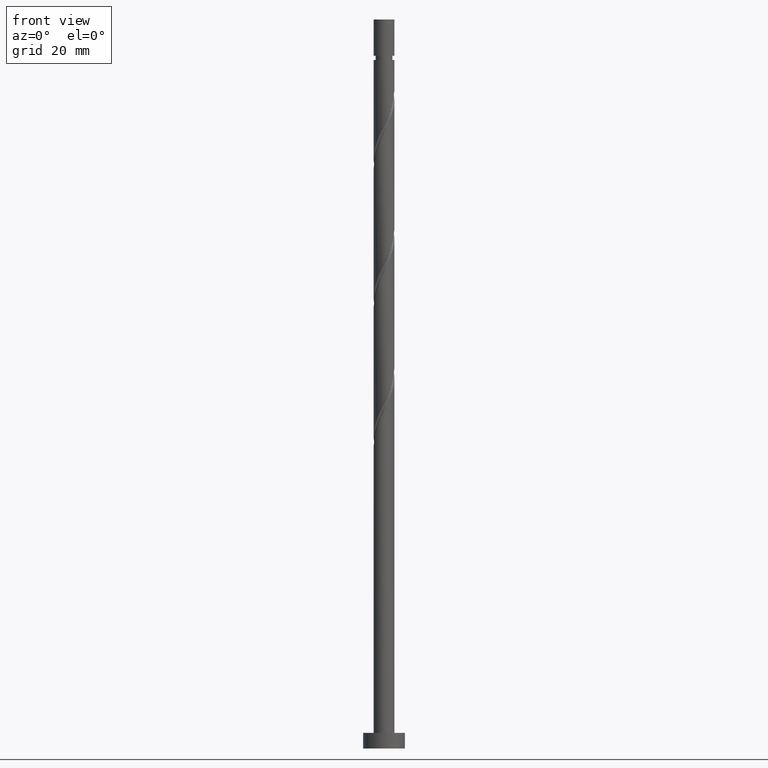
[diagram: clean part render]
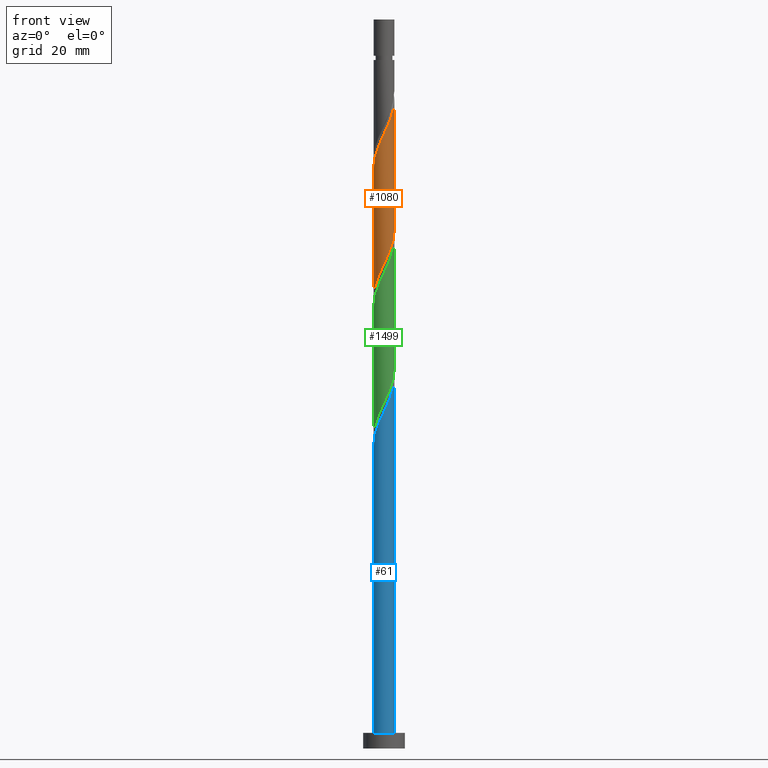
[diagram: same view with three faces highlighted in distinct colors, each labeled with its STEP entity id]
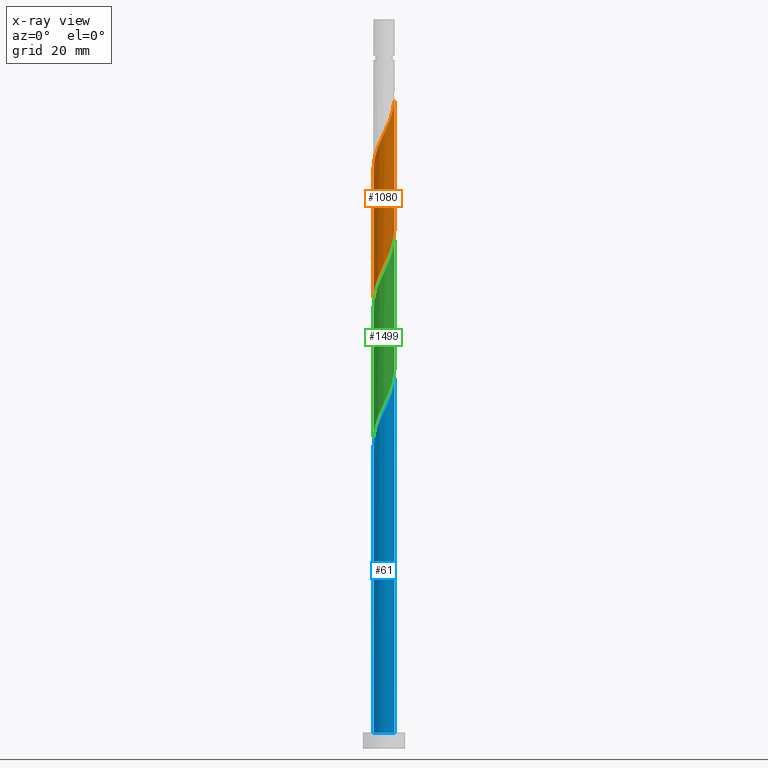
[diagram: x-ray of the same camera — body ghosted, the three highlighted faces saturated]
A machine part, front view with three faces highlighted in distinct colors.
The next image is the same camera in x-ray (body ghosted, the three faces saturated) — at least one of them is partly hidden behind the body in this view.
Their STEP definitions:

[orange] entity #1080 — the highlighted cylindrical surface (edge-blend (fillet) strip) has radius 2 mm, axis along (-0, -0, -1).
#8 = CARTESIAN_POINT ( 'NONE',  ( 1.220637884402353768, -1.584311571365224269, 95.86048121559286983 ) ) ;
#22 = CARTESIAN_POINT ( 'NONE',  ( 1.617545623245912001, -1.176242388590887478, 97.07260242771410219 ) ) ;
#24 = CARTESIAN_POINT ( 'NONE',  ( -2.000000000000000000, 0.000000000000000000, 140.0000000000000000 ) ) ;
#48 = CARTESIAN_POINT ( 'NONE',  ( -0.9928482695149686288, -1.759812803970230100, 115.8604812155928983 ) ) ;
#80 = DIRECTION ( 'NONE',  ( -0.000000000000000000, -0.000000000000000000, -1.000000000000000000 ) ) ;
#129 = ORIENTED_EDGE ( 'NONE', *, *, #805, .T. ) ;
#161 = CARTESIAN_POINT ( 'NONE',  ( 0.1161895186125008333, -2.017223038501450905, 118.2847236398353203 ) ) ;
#169 = CARTESIAN_POINT ( 'NONE',  ( -2.000000000000000888, -3.305457375472719724E-15, 86.40690539186348929 ) ) ;
#177 = CARTESIAN_POINT ( 'NONE',  ( -1.617545623245913777, -1.176242388590888588, 114.0422993974110710 ) ) ;
#186 = CARTESIAN_POINT ( 'NONE',  ( -2.000000000000002220, -0.05755105304765496116, 111.4967611046465805 ) ) ;
#216 = VERTEX_POINT ( 'NONE', #572 ) ;
#280 = CARTESIAN_POINT ( 'NONE',  ( 0.9340691933046025852, -1.768478086411957584, 120.1029054580171334 ) ) ;
#290 = VERTEX_POINT ( 'NONE', #535 ) ;
#295 = CARTESIAN_POINT ( 'NONE',  ( -1.394470680848407085, -1.433684595806964834, 89.79987515498685013 ) ) ;
#300 = CARTESIAN_POINT ( 'NONE',  ( -1.996690616564942733, -0.1150068768444771905, 111.6180569731686347 ) ) ;
#399 = CARTESIAN_POINT ( 'NONE',  ( 2.000000000000000888, -0.05755105304764396995, 99.61814072047860691 ) ) ;
#401 = CARTESIAN_POINT ( 'NONE',  ( 1.394470680848408417, -1.433684595806967943, 121.3150266701383373 ) ) ;
#405 = CARTESIAN_POINT ( 'NONE',  ( -1.948211798543800111, -0.4521844623765073345, 87.37563273074441383 ) ) ;
#406 = CARTESIAN_POINT ( 'NONE',  ( 1.883197487972275042, -0.7322950311120145495, 123.1332084883201645 ) ) ;
#412 = CARTESIAN_POINT ( 'NONE',  ( -2.000000000000000444, -0.2290578547702443180, 86.89286534483478874 ) ) ;
#419 = CARTESIAN_POINT ( 'NONE',  ( 1.996690616564940512, -0.1150068768444777595, 99.49684485195651007 ) ) ;
#426 = CARTESIAN_POINT ( 'NONE',  ( -2.000000000000003109, -4.629136007732132229E-15, 111.3746630999283838 ) ) ;
#427 = CARTESIAN_POINT ( 'NONE',  ( 1.980155124014551626, -0.4020876473299559994, 98.89078424589592942 ) ) ;
#433 = CARTESIAN_POINT ( 'NONE',  ( -1.883409435608318860, -0.6728810428757552309, 112.8301781852898529 ) ) ;
#454 = CYLINDRICAL_SURFACE ( 'NONE', #1509, 2.000000000000000000 ) ;
#479 = VERTEX_POINT ( 'NONE', #1556 ) ;
#514 = EDGE_CURVE ( 'NONE', #902, #479, #1171, .T. ) ;
#529 = CARTESIAN_POINT ( 'NONE',  ( -1.600603406160405751, -1.233189980288572851, 89.19381454892622685 ) ) ;
#535 = CARTESIAN_POINT ( 'NONE',  ( -2.000000000000003109, -4.629136007732132229E-15, 111.3746630999283838 ) ) ;
#572 = CARTESIAN_POINT ( 'NONE',  ( 2.000000000000002665, -1.054455859596495612E-15, 124.7079964332616981 ) ) ;
#578 = CARTESIAN_POINT ( 'NONE',  ( 2.000000000000000888, 2.901623216478314900E-15, 99.74023872519683209 ) ) ;
#646 = CARTESIAN_POINT ( 'NONE',  ( -0.9340691933046022521, -1.768478086411954919, 91.01199636710802565 ) ) ;
#680 = CARTESIAN_POINT ( 'NONE',  ( -1.448427499289743681, -1.408810338760222214, 114.6483600034716375 ) ) ;
#686 = CARTESIAN_POINT ( 'NONE',  ( -1.220637884402355766, -1.584311571365225602, 115.2544206095322750 ) ) ;
#774 = EDGE_LOOP ( 'NONE', ( #1457, #1506, #129, #1254 ) ) ;
#783 = CARTESIAN_POINT ( 'NONE',  ( -0.4568343776401059264, -1.968245701812304072, 117.0726024277141306 ) ) ;
#796 = CARTESIAN_POINT ( 'NONE',  ( 0.4568343776401054823, -1.968245701812301407, 94.04229939741105682 ) ) ;
#805 = EDGE_CURVE ( 'NONE', #290, #479, #1559, .T. ) ;
#811 = CARTESIAN_POINT ( 'NONE',  ( -1.980155124014553847, -0.4020876473299558329, 112.2241175792292438 ) ) ;
#854 = FACE_OUTER_BOUND ( 'NONE', #774, .T. ) ;
#902 = VERTEX_POINT ( 'NONE', #578 ) ;
#913 = CARTESIAN_POINT ( 'NONE',  ( -0.1161895186125015411, -2.017223038501448684, 92.83017818528983867 ) ) ;
#914 = CARTESIAN_POINT ( 'NONE',  ( 0.3979949748426487299, -1.960000000000002629, 118.8907842458959010 ) ) ;
#936 = CARTESIAN_POINT ( 'NONE',  ( 1.786663747202082098, -0.9436744384215545178, 97.67866303377469706 ) ) ;
#953 = CARTESIAN_POINT ( 'NONE',  ( -0.7248413235775373886, -1.864029252891266752, 116.4665418216534789 ) ) ;
#1004 = VECTOR ( 'NONE', #1442, 1000.000000000000000 ) ;
#1026 = CARTESIAN_POINT ( 'NONE',  ( 1.188337955536409973, -1.634179211325360370, 120.7089660640777424 ) ) ;
#1035 = DIRECTION ( 'NONE',  ( -0.000000000000000000, -0.000000000000000000, -1.000000000000000000 ) ) ;
#1040 = CARTESIAN_POINT ( 'NONE',  ( -1.883197487972272155, -0.7322950311120138833, 87.98169333680498028 ) ) ;
#1047 = CARTESIAN_POINT ( 'NONE',  ( 0.7248413235775359453, -1.864029252891264754, 94.64836000347168010 ) ) ;
#1056 = CARTESIAN_POINT ( 'NONE',  ( 1.741900447066340174, -0.9827425057002949771, 122.5271478822595270 ) ) ;
#1080 = ADVANCED_FACE ( 'NONE', ( #854 ), #454, .T. ) ;
#1154 = CARTESIAN_POINT ( 'NONE',  ( 0.6798004310727967514, -1.902776961498555020, 119.4968448519565243 ) ) ;
#1168 = CARTESIAN_POINT ( 'NONE',  ( -1.188337955536408197, -1.634179211325358816, 90.40593576104740237 ) ) ;
#1171 =( BOUNDED_CURVE ( )  B_SPLINE_CURVE ( 2, ( #1177, #399, #419, #427, #1308, #936, #22, #1440, #8, #1432, #1047, #796, #1185, #913, #1549, #1294, #646, #1168, #295, #529, #1315, #1040, #405, #412, #169 ),
 .UNSPECIFIED., .F., .T. ) 
 B_SPLINE_CURVE_WITH_KNOTS ( ( 3, 2, 2, 2, 2, 2, 2, 2, 2, 2, 2, 2, 3 ),
 ( 0.5545252162417512176, 0.5568181818181817677, 0.5681818181818182323, 0.5795454545454545858, 0.5909090909090909394, 0.6022727272727272929, 0.6136363636363636465, 0.6250000000000000000, 0.6363636363636363535, 0.6477272727272727071, 0.6590909090909090606, 0.6704545454545454142, 0.6795252162417513286 ),
 .UNSPECIFIED. ) 
 CURVE ( )  GEOMETRIC_REPRESENTATION_ITEM ( )  RATIONAL_B_SPLINE_CURVE ( ( 0.9061101570135571270, 0.9072237824201392353, 0.9090909090909168322, 0.8998376744372191816, 0.9090909090909168322, 0.8998376744372191816, 0.9090909090909168322, 0.8998376744372191816, 0.9090909090909168322, 0.8998376744372191816, 0.9090909090909168322, 0.8998376744372191816, 0.9090909090909168322, 0.8998376744372191816, 0.9090909090909168322, 0.8998376744372191816, 0.9090909090909168322, 0.8998376744372191816, 0.9090909090909168322, 0.8998376744372191816, 0.9090909090909168322, 0.8998376744372191816, 0.9090909090909168322, 0.9017048011079966674, 0.9061101570135572381 ) ) 
 REPRESENTATION_ITEM ( '' )  );
#1177 = CARTESIAN_POINT ( 'NONE',  ( 2.000000000000000888, 2.901623216478314900E-15, 99.74023872519683209 ) ) ;
#1185 = CARTESIAN_POINT ( 'NONE',  ( 0.1703224295138014710, -1.992734370156874713, 93.43623879135049037 ) ) ;
#1210 = DIRECTION ( 'NONE',  ( -1.000000000000000000, 0.000000000000000000, 0.000000000000000000 ) ) ;
#1236 = CARTESIAN_POINT ( 'NONE',  ( 0.000000000000000000, 0.000000000000000000, 140.0000000000000000 ) ) ;
#1254 = ORIENTED_EDGE ( 'NONE', *, *, #514, .F. ) ;
#1294 = CARTESIAN_POINT ( 'NONE',  ( -0.6798004310727965294, -1.902776961498552133, 91.61805697316864894 ) ) ;
#1302 = CARTESIAN_POINT ( 'NONE',  ( 2.000000000000002665, -1.054455859596495612E-15, 124.7079964332616981 ) ) ;
#1308 = CARTESIAN_POINT ( 'NONE',  ( 1.883409435608316418, -0.6728810428757551199, 98.28472363983532034 ) ) ;
#1315 = CARTESIAN_POINT ( 'NONE',  ( -1.741900447066338620, -0.9827425057002934228, 88.58775394286560356 ) ) ;
#1319 = EDGE_CURVE ( 'NONE', #290, #216, #1433, .T. ) ;
#1324 = CARTESIAN_POINT ( 'NONE',  ( -1.786663747202084762, -0.9436744384215552950, 113.4362387913504477 ) ) ;
#1339 = EDGE_CURVE ( 'NONE', #216, #902, #1421, .T. ) ;
#1421 = LINE ( 'NONE', #1434, #1616 ) ;
#1432 = CARTESIAN_POINT ( 'NONE',  ( 0.9928482695149667414, -1.759812803970228989, 95.25442060953228918 ) ) ;
#1433 =( BOUNDED_CURVE ( )  B_SPLINE_CURVE ( 2, ( #426, #186, #300, #811, #433, #1324, #177, #680, #686, #48, #953, #783, #1558, #161, #914, #1154, #280, #1026, #401, #1550, #1056, #406, #1545, #1657, #1302 ),
 .UNSPECIFIED., .F., .T. ) 
 B_SPLINE_CURVE_WITH_KNOTS ( ( 3, 2, 2, 2, 2, 2, 2, 2, 2, 2, 2, 2, 3 ),
 ( 0.5545252162417517727, 0.5568181818181818787, 0.5681818181818181213, 0.5795454545454545858, 0.5909090909090908283, 0.6022727272727272929, 0.6136363636363636465, 0.6250000000000000000, 0.6363636363636363535, 0.6477272727272727071, 0.6590909090909091717, 0.6704545454545454142, 0.6795252162417512176 ),
 .UNSPECIFIED. ) 
 CURVE ( )  GEOMETRIC_REPRESENTATION_ITEM ( )  RATIONAL_B_SPLINE_CURVE ( ( 0.9061101570135623451, 0.9072237824201444534, 0.9090909090909216062, 0.8998376744372238445, 0.9090909090909216062, 0.8998376744372238445, 0.9090909090909216062, 0.8998376744372238445, 0.9090909090909216062, 0.8998376744372238445, 0.9090909090909216062, 0.8998376744372238445, 0.9090909090909216062, 0.8998376744372238445, 0.9090909090909216062, 0.8998376744372238445, 0.9090909090909216062, 0.8998376744372238445, 0.9090909090909216062, 0.8998376744372238445, 0.9090909090909216062, 0.8998376744372238445, 0.9090909090909216062, 0.9017048011080014414, 0.9061101570135619010 ) ) 
 REPRESENTATION_ITEM ( '' )  );
#1434 = CARTESIAN_POINT ( 'NONE',  ( 2.000000000000000000, 2.449293598294706414E-16, 140.0000000000000000 ) ) ;
#1440 = CARTESIAN_POINT ( 'NONE',  ( 1.448427499289741904, -1.408810338760220437, 96.46654182165349312 ) ) ;
#1442 = DIRECTION ( 'NONE',  ( -0.000000000000000000, -0.000000000000000000, -1.000000000000000000 ) ) ;
#1457 = ORIENTED_EDGE ( 'NONE', *, *, #1339, .F. ) ;
#1506 = ORIENTED_EDGE ( 'NONE', *, *, #1319, .F. ) ;
#1509 = AXIS2_PLACEMENT_3D ( 'NONE', #1236, #80, #1210 ) ;
#1545 = CARTESIAN_POINT ( 'NONE',  ( 1.948211798543803441, -0.4521844623765081117, 123.7392690943807452 ) ) ;
#1549 = CARTESIAN_POINT ( 'NONE',  ( -0.3979949748426488410, -1.960000000000000409, 92.22411757922922959 ) ) ;
#1550 = CARTESIAN_POINT ( 'NONE',  ( 1.600603406160407083, -1.233189980288574850, 121.9210872761989606 ) ) ;
#1556 = CARTESIAN_POINT ( 'NONE',  ( -2.000000000000000888, -3.305457375472719724E-15, 86.40690539186347507 ) ) ;
#1558 = CARTESIAN_POINT ( 'NONE',  ( -0.1703224295138025257, -1.992734370156877377, 117.6786630337747113 ) ) ;
#1559 = LINE ( 'NONE', #24, #1004 ) ;
#1616 = VECTOR ( 'NONE', #1035, 1000.000000000000000 ) ;
#1657 = CARTESIAN_POINT ( 'NONE',  ( 2.000000000000002220, -0.2290578547702498691, 124.2220364802903987 ) ) ;

[blue] entity #61 — the highlighted cylindrical surface (edge-blend (fillet) strip) has radius 2 mm, axis along (-0, -0, -1).
#33 = DIRECTION ( 'NONE',  ( -0.000000000000000000, -0.000000000000000000, -1.000000000000000000 ) ) ;
#41 = ORIENTED_EDGE ( 'NONE', *, *, #1008, .F. ) ;
#58 =( BOUNDED_CURVE ( )  B_SPLINE_CURVE ( 2, ( #710, #470, #840, #1354, #207, #1229, #71, #973, #1483, #718, #339, #848, #1237, #981, #1492, #855, #222, #577, #1588, #469, #1092, #1335, #698, #206, #1367 ),
 .UNSPECIFIED., .F., .T. ) 
 B_SPLINE_CURVE_WITH_KNOTS ( ( 3, 2, 2, 2, 2, 2, 2, 2, 2, 2, 2, 2, 3 ),
 ( 0.05452521624175146048, 0.05681818181818176772, 0.06818181818181823228, 0.07954545454545458583, 0.09090909090909093937, 0.1022727272727272929, 0.1136363636363636465, 0.1250000000000000000, 0.1363636363636363535, 0.1477272727272727071, 0.1590909090909090606, 0.1704545454545454142, 0.1795252162417513564 ),
 .UNSPECIFIED. ) 
 CURVE ( )  GEOMETRIC_REPRESENTATION_ITEM ( )  RATIONAL_B_SPLINE_CURVE ( ( 0.9061101570135621230, 0.9072237824201442313, 0.9090909090909216062, 0.8998376744372238445, 0.9090909090909216062, 0.8998376744372238445, 0.9090909090909216062, 0.8998376744372238445, 0.9090909090909216062, 0.8998376744372238445, 0.9090909090909216062, 0.8998376744372238445, 0.9090909090909216062, 0.8998376744372238445, 0.9090909090909216062, 0.8998376744372238445, 0.9090909090909216062, 0.8998376744372238445, 0.9090909090909216062, 0.8998376744372238445, 0.9090909090909216062, 0.8998376744372238445, 0.9090909090909216062, 0.9017048011080013303, 0.9061101570135620120 ) ) 
 REPRESENTATION_ITEM ( '' )  );
#61 = ADVANCED_FACE ( 'NONE', ( #1662 ), #743, .T. ) ;
#71 = CARTESIAN_POINT ( 'NONE',  ( -1.617545623245913777, -1.176242388590888588, 60.70896606407773533 ) ) ;
#180 = VECTOR ( 'NONE', #365, 1000.000000000000000 ) ;
#206 = CARTESIAN_POINT ( 'NONE',  ( 2.000000000000003109, -0.2290578547702442069, 70.88870314695705588 ) ) ;
#207 = CARTESIAN_POINT ( 'NONE',  ( -1.883409435608318860, -0.6728810428757552309, 59.49684485195651718 ) ) ;
#222 = CARTESIAN_POINT ( 'NONE',  ( 0.9340691933046025852, -1.768478086411957584, 66.76957212468379055 ) ) ;
#262 = ORIENTED_EDGE ( 'NONE', *, *, #628, .T. ) ;
#283 = CIRCLE ( 'NONE', #1613, 2.000000000000000000 ) ;
#339 = CARTESIAN_POINT ( 'NONE',  ( -0.7248413235775373886, -1.864029252891266752, 63.13320848832014320 ) ) ;
#365 = DIRECTION ( 'NONE',  ( -0.000000000000000000, -0.000000000000000000, -1.000000000000000000 ) ) ;
#374 = CARTESIAN_POINT ( 'NONE',  ( -2.000000000000000000, 0.000000000000000000, 3.000000000000000000 ) ) ;
#387 = CARTESIAN_POINT ( 'NONE',  ( 0.000000000000000000, 0.000000000000000000, 140.0000000000000000 ) ) ;
#462 = CARTESIAN_POINT ( 'NONE',  ( -2.000000000000003109, -1.839688946530055989E-15, 58.04132976659504095 ) ) ;
#469 = CARTESIAN_POINT ( 'NONE',  ( 1.600603406160407083, -1.233189980288574850, 68.58775394286561777 ) ) ;
#470 = CARTESIAN_POINT ( 'NONE',  ( -2.000000000000003109, -0.05755105304764937535, 58.16342777131325903 ) ) ;
#507 = VERTEX_POINT ( 'NONE', #1543 ) ;
#553 = LINE ( 'NONE', #1172, #768 ) ;
#577 = CARTESIAN_POINT ( 'NONE',  ( 1.188337955536409973, -1.634179211325360370, 67.37563273074441383 ) ) ;
#628 = EDGE_CURVE ( 'NONE', #1650, #1526, #283, .T. ) ;
#698 = CARTESIAN_POINT ( 'NONE',  ( 1.948211798543803441, -0.4521844623765081117, 70.40593576104737394 ) ) ;
#710 = CARTESIAN_POINT ( 'NONE',  ( -2.000000000000003109, -1.839688946530055989E-15, 58.04132976659504095 ) ) ;
#718 = CARTESIAN_POINT ( 'NONE',  ( -0.9928482695149686288, -1.759812803970230100, 62.52714788225954834 ) ) ;
#743 = CYLINDRICAL_SURFACE ( 'NONE', #1139, 2.000000000000000000 ) ;
#748 = LINE ( 'NONE', #1124, #180 ) ;
#768 = VECTOR ( 'NONE', #33, 1000.000000000000000 ) ;
#782 = CARTESIAN_POINT ( 'NONE',  ( 0.000000000000000000, 0.000000000000000000, 3.000000000000000000 ) ) ;
#784 = EDGE_CURVE ( 'NONE', #1155, #1650, #553, .T. ) ;
#840 = CARTESIAN_POINT ( 'NONE',  ( -1.996690616564942733, -0.1150068768444771905, 58.28472363983529902 ) ) ;
#848 = CARTESIAN_POINT ( 'NONE',  ( -0.4568343776401059264, -1.968245701812304072, 63.73926909438077359 ) ) ;
#855 = CARTESIAN_POINT ( 'NONE',  ( 0.6798004310727967514, -1.902776961498555020, 66.16351151862320989 ) ) ;
#873 = ORIENTED_EDGE ( 'NONE', *, *, #784, .T. ) ;
#891 = DIRECTION ( 'NONE',  ( 1.000000000000000000, 0.000000000000000000, 0.000000000000000000 ) ) ;
#973 = CARTESIAN_POINT ( 'NONE',  ( -1.448427499289743681, -1.408810338760222214, 61.31502667013833729 ) ) ;
#981 = CARTESIAN_POINT ( 'NONE',  ( 0.1161895186125008333, -2.017223038501450905, 64.95139030650197753 ) ) ;
#1008 = EDGE_CURVE ( 'NONE', #1155, #507, #58, .T. ) ;
#1092 = CARTESIAN_POINT ( 'NONE',  ( 1.741900447066340174, -0.9827425057002949771, 69.19381454892621264 ) ) ;
#1124 = CARTESIAN_POINT ( 'NONE',  ( 2.000000000000000000, 2.449293598294706414E-16, 140.0000000000000000 ) ) ;
#1128 = DIRECTION ( 'NONE',  ( -0.000000000000000000, -0.000000000000000000, -1.000000000000000000 ) ) ;
#1139 = AXIS2_PLACEMENT_3D ( 'NONE', #387, #1128, #1633 ) ;
#1155 = VERTEX_POINT ( 'NONE', #462 ) ;
#1172 = CARTESIAN_POINT ( 'NONE',  ( -2.000000000000000000, 0.000000000000000000, 140.0000000000000000 ) ) ;
#1229 = CARTESIAN_POINT ( 'NONE',  ( -1.786663747202084762, -0.9436744384215552950, 60.10290545801711914 ) ) ;
#1237 = CARTESIAN_POINT ( 'NONE',  ( -0.1703224295138025257, -1.992734370156877377, 64.34532970044136846 ) ) ;
#1325 = EDGE_LOOP ( 'NONE', ( #1403, #41, #873, #262 ) ) ;
#1335 = CARTESIAN_POINT ( 'NONE',  ( 1.883197487972275042, -0.7322950311120145495, 69.79987515498683592 ) ) ;
#1354 = CARTESIAN_POINT ( 'NONE',  ( -1.980155124014553847, -0.4020876473299558329, 58.89078424589592231 ) ) ;
#1367 = CARTESIAN_POINT ( 'NONE',  ( 2.000000000000003109, 1.742469611957329727E-15, 71.37466309992835534 ) ) ;
#1403 = ORIENTED_EDGE ( 'NONE', *, *, #1529, .F. ) ;
#1412 = DIRECTION ( 'NONE',  ( 0.000000000000000000, 0.000000000000000000, 1.000000000000000000 ) ) ;
#1483 = CARTESIAN_POINT ( 'NONE',  ( -1.220637884402355766, -1.584311571365225602, 61.92108727619895348 ) ) ;
#1492 = CARTESIAN_POINT ( 'NONE',  ( 0.3979949748426487299, -1.960000000000002629, 65.55745091256258661 ) ) ;
#1526 = VERTEX_POINT ( 'NONE', #1629 ) ;
#1529 = EDGE_CURVE ( 'NONE', #507, #1526, #748, .T. ) ;
#1543 = CARTESIAN_POINT ( 'NONE',  ( 2.000000000000003109, 1.742469611957329530E-15, 71.37466309992836955 ) ) ;
#1588 = CARTESIAN_POINT ( 'NONE',  ( 1.394470680848408417, -1.433684595806967943, 67.98169333680499449 ) ) ;
#1613 = AXIS2_PLACEMENT_3D ( 'NONE', #782, #1412, #891 ) ;
#1629 = CARTESIAN_POINT ( 'NONE',  ( 2.000000000000000000, 2.449293598294706414E-16, 3.000000000000000000 ) ) ;
#1633 = DIRECTION ( 'NONE',  ( -1.000000000000000000, 0.000000000000000000, 0.000000000000000000 ) ) ;
#1650 = VERTEX_POINT ( 'NONE', #374 ) ;
#1662 = FACE_OUTER_BOUND ( 'NONE', #1325, .T. ) ;

[green] entity #1499 — the highlighted cylindrical surface (edge-blend (fillet) strip) has radius 2 mm, axis along (-0, -0, -1).
#1 = DIRECTION ( 'NONE',  ( -1.000000000000000000, 0.000000000000000000, 0.000000000000000000 ) ) ;
#7 = EDGE_CURVE ( 'NONE', #1396, #239, #639, .T. ) ;
#78 = EDGE_CURVE ( 'NONE', #239, #760, #647, .T. ) ;
#103 = CARTESIAN_POINT ( 'NONE',  ( -1.948211798543800111, -0.4521844623765073345, 60.70896606407772111 ) ) ;
#126 = CARTESIAN_POINT ( 'NONE',  ( -1.741900447066338620, -0.9827425057002934228, 61.92108727619896058 ) ) ;
#237 = CARTESIAN_POINT ( 'NONE',  ( 2.000000000000003109, 1.742469611957329530E-15, 98.04132976659505516 ) ) ;
#239 = VERTEX_POINT ( 'NONE', #1594 ) ;
#246 = CARTESIAN_POINT ( 'NONE',  ( 0.1703224295138014710, -1.992734370156874713, 66.76957212468379055 ) ) ;
#247 = CARTESIAN_POINT ( 'NONE',  ( -2.000000000000003109, 3.731726765522349166E-15, 84.70799643326166972 ) ) ;
#258 = CARTESIAN_POINT ( 'NONE',  ( -0.9928482695149686288, -1.759812803970230100, 89.19381454892622685 ) ) ;
#267 = DIRECTION ( 'NONE',  ( -0.000000000000000000, -0.000000000000000000, -1.000000000000000000 ) ) ;
#268 = CARTESIAN_POINT ( 'NONE',  ( -1.448427499289743681, -1.408810338760222214, 87.98169333680499449 ) ) ;
#287 = CARTESIAN_POINT ( 'NONE',  ( -2.000000000000003109, 3.731726765522349166E-15, 84.70799643326166972 ) ) ;
#288 = FACE_OUTER_BOUND ( 'NONE', #1108, .T. ) ;
#379 = CARTESIAN_POINT ( 'NONE',  ( 2.000000000000000888, 2.901623216478314900E-15, 73.07357205853016069 ) ) ;
#381 = CARTESIAN_POINT ( 'NONE',  ( 1.883197487972275042, -0.7322950311120145495, 96.46654182165349312 ) ) ;
#388 = CARTESIAN_POINT ( 'NONE',  ( 1.600603406160407083, -1.233189980288574850, 95.25442060953226076 ) ) ;
#397 = CARTESIAN_POINT ( 'NONE',  ( -1.188337955536408197, -1.634179211325358816, 63.73926909438078070 ) ) ;
#400 = CARTESIAN_POINT ( 'NONE',  ( -1.883409435608318860, -0.6728810428757552309, 86.16351151862319568 ) ) ;
#480 = ORIENTED_EDGE ( 'NONE', *, *, #7, .F. ) ;
#493 = CARTESIAN_POINT ( 'NONE',  ( 0.7248413235775359453, -1.864029252891264754, 67.98169333680500870 ) ) ;
#494 = CARTESIAN_POINT ( 'NONE',  ( 0.3979949748426487299, -1.960000000000002629, 92.22411757922925801 ) ) ;
#504 = CARTESIAN_POINT ( 'NONE',  ( -2.000000000000000444, 7.859809279687392119E-15, 59.74023872519677525 ) ) ;
#513 = CARTESIAN_POINT ( 'NONE',  ( 1.617545623245912001, -1.176242388590887478, 70.40593576104741658 ) ) ;
#515 = CARTESIAN_POINT ( 'NONE',  ( -1.980155124014553847, -0.4020876473299558329, 85.55745091256260082 ) ) ;
#522 = CARTESIAN_POINT ( 'NONE',  ( 1.996690616564940512, -0.1150068768444777595, 72.83017818528986709 ) ) ;
#544 = DIRECTION ( 'NONE',  ( -0.000000000000000000, -0.000000000000000000, -1.000000000000000000 ) ) ;
#597 = VECTOR ( 'NONE', #267, 1000.000000000000000 ) ;
#602 = VERTEX_POINT ( 'NONE', #287 ) ;
#607 = EDGE_CURVE ( 'NONE', #602, #760, #928, .T. ) ;
#634 = CARTESIAN_POINT ( 'NONE',  ( -1.883197487972272155, -0.7322950311120138833, 61.31502667013833019 ) ) ;
#639 = LINE ( 'NONE', #1287, #597 ) ;
#645 = CARTESIAN_POINT ( 'NONE',  ( -1.394470680848407085, -1.433684595806964834, 63.13320848832015741 ) ) ;
#647 =( BOUNDED_CURVE ( )  B_SPLINE_CURVE ( 2, ( #379, #1418, #522, #780, #1389, #1654, #513, #1138, #1259, #897, #493, #1003, #246, #1268, #1408, #1277, #890, #397, #645, #1541, #126, #634, #103, #1023, #504 ),
 .UNSPECIFIED., .F., .T. ) 
 B_SPLINE_CURVE_WITH_KNOTS ( ( 3, 2, 2, 2, 2, 2, 2, 2, 2, 2, 2, 2, 3 ),
 ( 0.8045252162417512176, 0.8068181818181817677, 0.8181818181818182323, 0.8295454545454545858, 0.8409090909090909394, 0.8522727272727272929, 0.8636363636363636465, 0.8750000000000000000, 0.8863636363636363535, 0.8977272727272727071, 0.9090909090909090606, 0.9204545454545454142, 0.9295252162417515507 ),
 .UNSPECIFIED. ) 
 CURVE ( )  GEOMETRIC_REPRESENTATION_ITEM ( )  RATIONAL_B_SPLINE_CURVE ( ( 0.9061101570135571270, 0.9072237824201392353, 0.9090909090909168322, 0.8998376744372191816, 0.9090909090909168322, 0.8998376744372191816, 0.9090909090909168322, 0.8998376744372191816, 0.9090909090909168322, 0.8998376744372191816, 0.9090909090909168322, 0.8998376744372191816, 0.9090909090909168322, 0.8998376744372191816, 0.9090909090909168322, 0.8998376744372191816, 0.9090909090909168322, 0.8998376744372191816, 0.9090909090909168322, 0.8998376744372191816, 0.9090909090909168322, 0.8998376744372191816, 0.9090909090909168322, 0.9017048011079964454, 0.9061101570135574601 ) ) 
 REPRESENTATION_ITEM ( '' )  );
#671 = DIRECTION ( 'NONE',  ( -0.000000000000000000, -0.000000000000000000, -1.000000000000000000 ) ) ;
#676 = EDGE_CURVE ( 'NONE', #602, #1396, #929, .T. ) ;
#745 = CARTESIAN_POINT ( 'NONE',  ( 1.948211798543803441, -0.4521844623765081117, 97.07260242771408798 ) ) ;
#755 = CARTESIAN_POINT ( 'NONE',  ( -2.000000000000000444, 7.859809279687392119E-15, 59.74023872519677525 ) ) ;
#760 = VERTEX_POINT ( 'NONE', #755 ) ;
#767 = CARTESIAN_POINT ( 'NONE',  ( 0.9340691933046025852, -1.768478086411957584, 93.43623879135049037 ) ) ;
#775 = CARTESIAN_POINT ( 'NONE',  ( 1.188337955536409973, -1.634179211325360370, 94.04229939741107103 ) ) ;
#780 = CARTESIAN_POINT ( 'NONE',  ( 1.980155124014551626, -0.4020876473299559994, 72.22411757922924380 ) ) ;
#804 = CARTESIAN_POINT ( 'NONE',  ( -2.000000000000000000, 0.000000000000000000, 140.0000000000000000 ) ) ;
#890 = CARTESIAN_POINT ( 'NONE',  ( -0.9340691933046022521, -1.768478086411954919, 64.34532970044138267 ) ) ;
#897 = CARTESIAN_POINT ( 'NONE',  ( 0.9928482695149667414, -1.759812803970228989, 68.58775394286560356 ) ) ;
#907 = CARTESIAN_POINT ( 'NONE',  ( 1.394470680848408417, -1.433684595806967943, 94.64836000347165168 ) ) ;
#922 = CARTESIAN_POINT ( 'NONE',  ( 2.000000000000003109, 1.742469611957329530E-15, 98.04132976659504095 ) ) ;
#928 = LINE ( 'NONE', #804, #1167 ) ;
#929 =( BOUNDED_CURVE ( )  B_SPLINE_CURVE ( 2, ( #247, #1153, #1016, #515, #400, #1544, #1663, #268, #1025, #258, #1534, #1401, #1525, #1033, #494, #1391, #767, #775, #907, #388, #1279, #381, #745, #1420, #237 ),
 .UNSPECIFIED., .F., .F. ) 
 B_SPLINE_CURVE_WITH_KNOTS ( ( 3, 2, 2, 2, 2, 2, 2, 2, 2, 2, 2, 2, 3 ),
 ( 0.3045252162417511066, 0.3068181818181817677, 0.3181818181818182323, 0.3295454545454545858, 0.3409090909090909394, 0.3522727272727272929, 0.3636363636363636465, 0.3750000000000000000, 0.3863636363636363535, 0.3977272727272727071, 0.4090909090909090606, 0.4204545454545454142, 0.4295252162417512731 ),
 .UNSPECIFIED. ) 
 CURVE ( )  GEOMETRIC_REPRESENTATION_ITEM ( )  RATIONAL_B_SPLINE_CURVE ( ( 0.9061101570135616790, 0.9072237824201438983, 0.9090909090909216062, 0.8998376744372238445, 0.9090909090909216062, 0.8998376744372238445, 0.9090909090909216062, 0.8998376744372238445, 0.9090909090909216062, 0.8998376744372238445, 0.9090909090909216062, 0.8998376744372238445, 0.9090909090909216062, 0.8998376744372238445, 0.9090909090909216062, 0.8998376744372238445, 0.9090909090909216062, 0.8998376744372238445, 0.9090909090909216062, 0.8998376744372238445, 0.9090909090909216062, 0.8998376744372238445, 0.9090909090909216062, 0.9017048011080013303, 0.9061101570135619010 ) ) 
 REPRESENTATION_ITEM ( '' )  );
#945 = ORIENTED_EDGE ( 'NONE', *, *, #607, .T. ) ;
#990 = ORIENTED_EDGE ( 'NONE', *, *, #676, .F. ) ;
#1003 = CARTESIAN_POINT ( 'NONE',  ( 0.4568343776401054823, -1.968245701812301407, 67.37563273074441383 ) ) ;
#1016 = CARTESIAN_POINT ( 'NONE',  ( -1.996690616564942733, -0.1150068768444771905, 84.95139030650196332 ) ) ;
#1019 = ORIENTED_EDGE ( 'NONE', *, *, #78, .F. ) ;
#1023 = CARTESIAN_POINT ( 'NONE',  ( -2.000000000000002220, -0.2290578547702388224, 60.22619867816808892 ) ) ;
#1025 = CARTESIAN_POINT ( 'NONE',  ( -1.220637884402355766, -1.584311571365225602, 88.58775394286558935 ) ) ;
#1033 = CARTESIAN_POINT ( 'NONE',  ( 0.1161895186125008333, -2.017223038501450905, 91.61805697316864894 ) ) ;
#1108 = EDGE_LOOP ( 'NONE', ( #480, #990, #945, #1019 ) ) ;
#1138 = CARTESIAN_POINT ( 'NONE',  ( 1.448427499289741904, -1.408810338760220437, 69.79987515498683592 ) ) ;
#1153 = CARTESIAN_POINT ( 'NONE',  ( -2.000000000000003109, -0.05755105304764045887, 84.83009443797988069 ) ) ;
#1162 = CYLINDRICAL_SURFACE ( 'NONE', #1194, 2.000000000000000000 ) ;
#1167 = VECTOR ( 'NONE', #671, 1000.000000000000000 ) ;
#1194 = AXIS2_PLACEMENT_3D ( 'NONE', #1426, #544, #1 ) ;
#1259 = CARTESIAN_POINT ( 'NONE',  ( 1.220637884402353768, -1.584311571365224269, 69.19381454892619843 ) ) ;
#1268 = CARTESIAN_POINT ( 'NONE',  ( -0.1161895186125015411, -2.017223038501448684, 66.16351151862319568 ) ) ;
#1277 = CARTESIAN_POINT ( 'NONE',  ( -0.6798004310727965294, -1.902776961498552133, 64.95139030650197753 ) ) ;
#1279 = CARTESIAN_POINT ( 'NONE',  ( 1.741900447066340174, -0.9827425057002949771, 95.86048121559288404 ) ) ;
#1287 = CARTESIAN_POINT ( 'NONE',  ( 2.000000000000000000, 2.449293598294706414E-16, 140.0000000000000000 ) ) ;
#1389 = CARTESIAN_POINT ( 'NONE',  ( 1.883409435608316418, -0.6728810428757551199, 71.61805697316862052 ) ) ;
#1391 = CARTESIAN_POINT ( 'NONE',  ( 0.6798004310727967514, -1.902776961498555020, 92.83017818528983867 ) ) ;
#1396 = VERTEX_POINT ( 'NONE', #922 ) ;
#1401 = CARTESIAN_POINT ( 'NONE',  ( -0.4568343776401059264, -1.968245701812304072, 90.40593576104743079 ) ) ;
#1408 = CARTESIAN_POINT ( 'NONE',  ( -0.3979949748426488410, -1.960000000000000409, 65.55745091256257240 ) ) ;
#1418 = CARTESIAN_POINT ( 'NONE',  ( 2.000000000000000888, -0.05755105304764396995, 72.95147405381194972 ) ) ;
#1420 = CARTESIAN_POINT ( 'NONE',  ( 2.000000000000003109, -0.2290578547702462886, 97.55536981362375570 ) ) ;
#1426 = CARTESIAN_POINT ( 'NONE',  ( 0.000000000000000000, 0.000000000000000000, 140.0000000000000000 ) ) ;
#1499 = ADVANCED_FACE ( 'NONE', ( #288 ), #1162, .T. ) ;
#1525 = CARTESIAN_POINT ( 'NONE',  ( -0.1703224295138025257, -1.992734370156877377, 91.01199636710802565 ) ) ;
#1534 = CARTESIAN_POINT ( 'NONE',  ( -0.7248413235775373886, -1.864029252891266752, 89.79987515498683592 ) ) ;
#1541 = CARTESIAN_POINT ( 'NONE',  ( -1.600603406160405751, -1.233189980288572851, 62.52714788225954834 ) ) ;
#1544 = CARTESIAN_POINT ( 'NONE',  ( -1.786663747202084762, -0.9436744384215552950, 86.76957212468380476 ) ) ;
#1594 = CARTESIAN_POINT ( 'NONE',  ( 2.000000000000000888, 2.901623216478314900E-15, 73.07357205853016069 ) ) ;
#1654 = CARTESIAN_POINT ( 'NONE',  ( 1.786663747202082098, -0.9436744384215545178, 71.01199636710803986 ) ) ;
#1663 = CARTESIAN_POINT ( 'NONE',  ( -1.617545623245913777, -1.176242388590888588, 87.37563273074438541 ) ) ;